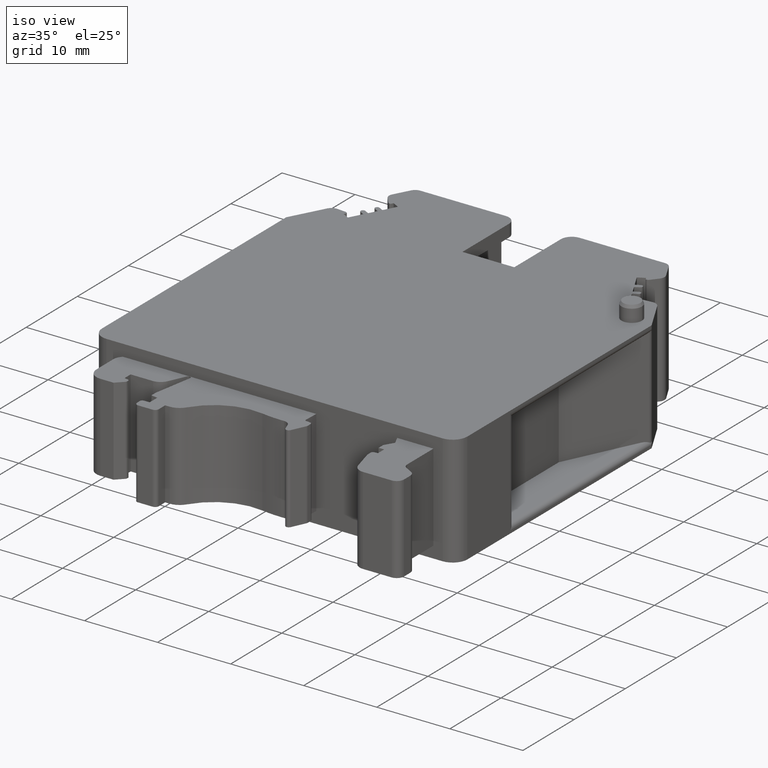
[diagram: clean part render]
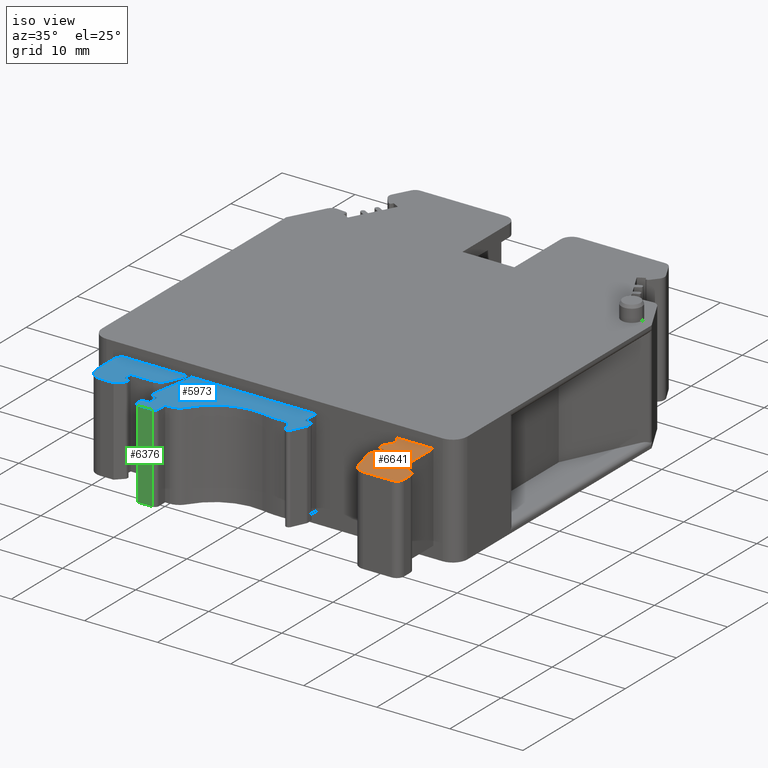
[diagram: same view with three faces highlighted in distinct colors, each labeled with its STEP entity id]
A machine part, iso view with three faces highlighted in distinct colors.
Their STEP definitions:

[orange] entity #6641 — the highlighted planar face has unit normal (0, 0, 1).
#1923=DIRECTION('',(1.E0,0.E0,0.E0));
#1924=VECTOR('',#1923,4.959569202647E0);
#1925=CARTESIAN_POINT('',(4.179043079735E1,6.550315845288E-14,-1.6E0));
#1926=LINE('',#1925,#1924);
#1927=DIRECTION('',(1.619842707403E-13,-1.E0,0.E0));
#1928=VECTOR('',#1927,5.132195842472E0);
#1929=CARTESIAN_POINT('',(4.675E1,6.631732200428E-14,-1.6E0));
#1930=LINE('',#1929,#1928);
#1931=CARTESIAN_POINT('',(4.765E1,-5.132195842466E0,-1.6E0));
#1932=DIRECTION('',(0.E0,0.E0,1.E0));
#1933=DIRECTION('',(-1.E0,-2.067778047553E-11,0.E0));
#1934=AXIS2_PLACEMENT_3D('',#1931,#1932,#1933);
#1936=DIRECTION('',(8.746197071398E-1,-4.848096202457E-1,0.E0));
#1937=VECTOR('',#1936,1.119039211100E0);
#1938=CARTESIAN_POINT('',(4.721367134177E1,-5.919353578881E0,-1.6E0));
#1939=LINE('',#1938,#1937);
#1940=CARTESIAN_POINT('',(4.795000015191E1,-6.899184510810E0,-1.6E0));
#1941=DIRECTION('',(0.E0,0.E0,-1.E0));
#1942=DIRECTION('',(4.848096852540E-1,8.746196711050E-1,0.E0));
#1943=AXIS2_PLACEMENT_3D('',#1940,#1941,#1942);
#1945=CARTESIAN_POINT('',(4.775000097952E1,-7.359998883366E0,-1.6E0));
#1946=DIRECTION('',(0.E0,0.E0,-1.E0));
#1947=DIRECTION('',(4.597724707376E-1,8.880367532664E-1,0.E0));
#1948=AXIS2_PLACEMENT_3D('',#1945,#1946,#1947);
#1950=DIRECTION('',(7.573865511133E-9,-1.E0,0.E0));
#1951=VECTOR('',#1950,1.240269020928E0);
#1952=CARTESIAN_POINT('',(4.874999998359E1,-7.359731023268E0,-1.6E0));
#1953=LINE('',#1952,#1951);
#1954=CARTESIAN_POINT('',(4.775000074708E1,-8.600000747074E0,-1.6E0));
#1955=DIRECTION('',(0.E0,0.E0,-1.E0));
#1956=DIRECTION('',(9.999999999998E-1,6.145249739235E-7,0.E0));
#1957=AXIS2_PLACEMENT_3D('',#1954,#1955,#1956);
#1959=DIRECTION('',(-1.E0,1.488688068237E-13,0.E0));
#1960=VECTOR('',#1959,3.913815498053E0);
#1961=CARTESIAN_POINT('',(4.775000049805E1,-9.600000000001E0,-1.6E0));
#1962=LINE('',#1961,#1960);
#1963=CARTESIAN_POINT('',(4.383618528434E1,-8.099999138882E0,-1.6E0));
#1964=DIRECTION('',(0.E0,0.E0,-1.E0));
#1965=DIRECTION('',(-1.895656729127E-7,-1.E0,0.E0));
#1966=AXIS2_PLACEMENT_3D('',#1963,#1964,#1965);
#1968=DIRECTION('',(-2.588190181939E-1,9.659258334992E-1,0.E0));
#1969=VECTOR('',#1968,3.041878473640E0);
#1970=CARTESIAN_POINT('',(4.238729600001E1,-8.488229000049E0,-1.6E0));
#1971=LINE('',#1970,#1969);
#1972=DIRECTION('',(3.363206218261E-12,1.E0,0.E0));
#1973=VECTOR('',#1972,6.338083569500E-1);
#1974=CARTESIAN_POINT('',(4.16E1,-5.549999999995E0,-1.6E0));
#1975=LINE('',#1974,#1973);
#1976=CARTESIAN_POINT('',(4.190000010430E1,-4.916191501490E0,-1.6E0));
#1977=DIRECTION('',(0.E0,0.E0,-1.E0));
#1978=DIRECTION('',(-9.999999999997E-1,-7.385508449874E-7,0.E0));
#1979=AXIS2_PLACEMENT_3D('',#1976,#1977,#1978);
#1981=DIRECTION('',(9.902681343909E-1,1.391726338400E-1,0.E0));
#1982=VECTOR('',#1981,4.965846955210E-1);
#1983=CARTESIAN_POINT('',(4.1858248E1,-4.619110999999E0,-1.6E0));
#1984=LINE('',#1983,#1982);
#1985=DIRECTION('',(2.368475785867E-14,1.E0,0.E0));
#1986=VECTOR('',#1985,1.2E0);
#1987=CARTESIAN_POINT('',(4.235E1,-4.549999999999E0,-1.6E0));
#1988=LINE('',#1987,#1986);
#1989=DIRECTION('',(-1.E0,0.E0,0.E0));
#1990=VECTOR('',#1989,7.500000000003E-1);
#1991=CARTESIAN_POINT('',(4.235E1,-3.349999999999E0,-1.6E0));
#1992=LINE('',#1991,#1990);
#1993=DIRECTION('',(1.571088937962E-12,1.E0,0.E0));
#1994=VECTOR('',#1993,8.999999999977E-1);
#1995=CARTESIAN_POINT('',(4.16E1,-3.349999999999E0,-1.6E0));
#1996=LINE('',#1995,#1994);
#1997=DIRECTION('',(5.144957554246E-1,8.574929257143E-1,0.E0));
#1998=VECTOR('',#1997,1.457737973714E0);
#1999=CARTESIAN_POINT('',(4.16E1,-2.450000000001E0,-1.6E0));
#2000=LINE('',#1999,#1998);
#2001=DIRECTION('',(-4.226182697187E-1,9.063077833164E-1,0.E0));
#2002=VECTOR('',#2001,1.324053508186E0);
#2003=CARTESIAN_POINT('',(4.235E1,-1.199999999997E0,-1.6E0));
#2004=LINE('',#2003,#2002);
#3810=CARTESIAN_POINT('',(4.675E1,-5.132195842485E0,-1.6E0));
#3811=CARTESIAN_POINT('',(4.721367134175E1,-5.919353578876E0,-1.6E0));
#3812=VERTEX_POINT('',#3810);
#3813=VERTEX_POINT('',#3811);
#3814=CARTESIAN_POINT('',(4.819240508886E1,-6.461874553855E0,-1.6E0));
#3815=VERTEX_POINT('',#3814);
#3816=CARTESIAN_POINT('',(4.820977299991E1,-6.471962999936E0,-1.6E0));
#3817=VERTEX_POINT('',#3816);
#3818=CARTESIAN_POINT('',(4.874999994593E1,-7.359670033565E0,-1.6E0));
#3819=VERTEX_POINT('',#3818);
#3820=CARTESIAN_POINT('',(4.874999999299E1,-8.600000044196E0,-1.6E0));
#3821=VERTEX_POINT('',#3820);
#3822=CARTESIAN_POINT('',(4.775000149415E1,-9.600000000004E0,-1.6E0));
#3823=VERTEX_POINT('',#3822);
#3824=CARTESIAN_POINT('',(4.3836185E1,-9.600000000001E0,-1.6E0));
#3825=VERTEX_POINT('',#3824);
#3826=CARTESIAN_POINT('',(4.238729600002E1,-8.488229000093E0,-1.6E0));
#3827=VERTEX_POINT('',#3826);
#3828=CARTESIAN_POINT('',(4.16E1,-5.549999999995E0,-1.6E0));
#3829=VERTEX_POINT('',#3828);
#3830=CARTESIAN_POINT('',(4.16E1,-4.916191643045E0,-1.6E0));
#3831=VERTEX_POINT('',#3830);
#3832=CARTESIAN_POINT('',(4.1858248E1,-4.619110999999E0,-1.6E0));
#3833=VERTEX_POINT('',#3832);
#3834=CARTESIAN_POINT('',(4.235E1,-4.549999999999E0,-1.6E0));
#3835=VERTEX_POINT('',#3834);
#3836=CARTESIAN_POINT('',(4.235E1,-3.349999999999E0,-1.6E0));
#3837=VERTEX_POINT('',#3836);
#3838=CARTESIAN_POINT('',(4.16E1,-3.349999999999E0,-1.6E0));
#3839=VERTEX_POINT('',#3838);
#3840=CARTESIAN_POINT('',(4.16E1,-2.450000000001E0,-1.6E0));
#3841=VERTEX_POINT('',#3840);
#3842=CARTESIAN_POINT('',(4.235E1,-1.199999999997E0,-1.6E0));
#3843=VERTEX_POINT('',#3842);
#3963=CARTESIAN_POINT('',(4.179043079735E1,6.550315845288E-14,-1.6E0));
#3965=VERTEX_POINT('',#3963);
#3966=CARTESIAN_POINT('',(4.675E1,6.631732200428E-14,-1.6E0));
#3968=VERTEX_POINT('',#3966);
#6597=CARTESIAN_POINT('',(4.447126627740E1,-2.099999999997E0,-1.6E0));
#6598=DIRECTION('',(0.E0,0.E0,1.E0));
#6599=DIRECTION('',(-1.E0,0.E0,0.E0));
#6600=AXIS2_PLACEMENT_3D('',#6597,#6598,#6599);
#6601=PLANE('',#6600);
#6602=ORIENTED_EDGE('',*,*,#5862,.T.);
#6604=ORIENTED_EDGE('',*,*,#6603,.T.);
#6606=ORIENTED_EDGE('',*,*,#6605,.T.);
#6608=ORIENTED_EDGE('',*,*,#6607,.T.);
#6610=ORIENTED_EDGE('',*,*,#6609,.T.);
#6612=ORIENTED_EDGE('',*,*,#6611,.T.);
#6614=ORIENTED_EDGE('',*,*,#6613,.T.);
#6616=ORIENTED_EDGE('',*,*,#6615,.T.);
#6618=ORIENTED_EDGE('',*,*,#6617,.T.);
#6620=ORIENTED_EDGE('',*,*,#6619,.T.);
#6622=ORIENTED_EDGE('',*,*,#6621,.T.);
#6624=ORIENTED_EDGE('',*,*,#6623,.T.);
#6626=ORIENTED_EDGE('',*,*,#6625,.T.);
#6628=ORIENTED_EDGE('',*,*,#6627,.T.);
#6630=ORIENTED_EDGE('',*,*,#6629,.T.);
#6632=ORIENTED_EDGE('',*,*,#6631,.T.);
#6634=ORIENTED_EDGE('',*,*,#6633,.T.);
#6636=ORIENTED_EDGE('',*,*,#6635,.T.);
#6638=ORIENTED_EDGE('',*,*,#6637,.T.);
#6639=EDGE_LOOP('',(#6602,#6604,#6606,#6608,#6610,#6612,#6614,#6616,#6618,#6620,
#6622,#6624,#6626,#6628,#6630,#6632,#6634,#6636,#6638));
#6640=FACE_OUTER_BOUND('',#6639,.F.);
#6641=ADVANCED_FACE('',(#6640),#6601,.T.);
#1935=CIRCLE('',#1934,9.E-1);
#1944=CIRCLE('',#1943,5.000001519100E-1);
#1949=CIRCLE('',#1948,9.999990204800E-1);
#1958=CIRCLE('',#1957,9.999992529300E-1);
#1967=CIRCLE('',#1966,1.500000861120E0);
#1980=CIRCLE('',#1979,3.000001043E-1);
#5862=EDGE_CURVE('',#3965,#3968,#1926,.T.);
#6603=EDGE_CURVE('',#3968,#3812,#1930,.T.);
#6605=EDGE_CURVE('',#3812,#3813,#1935,.T.);
#6607=EDGE_CURVE('',#3813,#3815,#1939,.T.);
#6609=EDGE_CURVE('',#3815,#3817,#1944,.T.);
#6611=EDGE_CURVE('',#3817,#3819,#1949,.T.);
#6613=EDGE_CURVE('',#3819,#3821,#1953,.T.);
#6615=EDGE_CURVE('',#3821,#3823,#1958,.T.);
#6617=EDGE_CURVE('',#3823,#3825,#1962,.T.);
#6619=EDGE_CURVE('',#3825,#3827,#1967,.T.);
#6621=EDGE_CURVE('',#3827,#3829,#1971,.T.);
#6623=EDGE_CURVE('',#3829,#3831,#1975,.T.);
#6625=EDGE_CURVE('',#3831,#3833,#1980,.T.);
#6627=EDGE_CURVE('',#3833,#3835,#1984,.T.);
#6629=EDGE_CURVE('',#3835,#3837,#1988,.T.);
#6631=EDGE_CURVE('',#3837,#3839,#1992,.T.);
#6633=EDGE_CURVE('',#3839,#3841,#1996,.T.);
#6635=EDGE_CURVE('',#3841,#3843,#2000,.T.);
#6637=EDGE_CURVE('',#3843,#3965,#2004,.T.);

[blue] entity #5973 — the highlighted planar face has unit normal (0, 0, 1).
#1385=DIRECTION('',(1.E0,0.E0,0.E0));
#1386=VECTOR('',#1385,2.645532482098E1);
#1387=CARTESIAN_POINT('',(4.260659416361E0,6.631732200428E-14,-1.6E0));
#1388=LINE('',#1387,#1386);
#1389=DIRECTION('',(-3.489970576851E-2,-9.993908197183E-1,0.E0));
#1390=VECTOR('',#1389,1.890681766179E0);
#1391=CARTESIAN_POINT('',(3.071598423734E1,6.635432943843E-14,-1.6E0));
#1392=LINE('',#1391,#1390);
#1393=CARTESIAN_POINT('',(3.094981710352E1,-1.900000134533E0,-1.6E0));
#1394=DIRECTION('',(0.E0,0.E0,1.E0));
#1395=DIRECTION('',(-9.993907932912E-1,3.490046252937E-2,0.E0));
#1396=AXIS2_PLACEMENT_3D('',#1393,#1394,#1395);
#1398=DIRECTION('',(1.E0,6.876640089118E-12,0.E0));
#1399=VECTOR('',#1398,1.773350000065E-1);
#1400=CARTESIAN_POINT('',(3.0949817E1,-2.200000000001E0,-1.6E0));
#1401=LINE('',#1400,#1399);
#1402=DIRECTION('',(9.876884786627E-1,-1.564335933135E-1,0.E0));
#1403=VECTOR('',#1402,3.512544769791E-1);
#1404=CARTESIAN_POINT('',(3.1127152E1,-2.2E0,-1.6E0));
#1405=LINE('',#1404,#1403);
#1406=CARTESIAN_POINT('',(3.142715124378E1,-2.551255201820E0,-1.6E0));
#1407=DIRECTION('',(0.E0,0.E0,-1.E0));
#1408=DIRECTION('',(1.564354596651E-1,9.876881830615E-1,0.E0));
#1409=AXIS2_PLACEMENT_3D('',#1406,#1407,#1408);
#1411=DIRECTION('',(1.169249998310E-11,-1.E0,0.E0));
#1412=VECTOR('',#1411,5.487450000588E-1);
#1413=CARTESIAN_POINT('',(3.1727152E1,-2.551255000007E0,-1.6E0));
#1414=LINE('',#1413,#1412);
#1415=CARTESIAN_POINT('',(3.112715307426E1,-3.100000984032E0,-1.6E0));
#1416=DIRECTION('',(0.E0,0.E0,-1.E0));
#1417=DIRECTION('',(9.999999999987E-1,1.639732406527E-6,0.E0));
#1418=AXIS2_PLACEMENT_3D('',#1415,#1416,#1417);
#1420=DIRECTION('',(-4.226185233592E-1,-9.063076650419E-1,0.E0));
#1421=VECTOR('',#1420,2.003156400427E0);
#1422=CARTESIAN_POINT('',(3.167093700001E1,-3.353571000007E0,-1.6E0));
#1423=LINE('',#1422,#1421);
#1424=CARTESIAN_POINT('',(3.046184290606E1,-5.000000069321E0,-1.6E0));
#1425=DIRECTION('',(0.E0,0.E0,-1.E0));
#1426=DIRECTION('',(9.063081358756E-1,-4.226175136524E-1,0.E0));
#1427=AXIS2_PLACEMENT_3D('',#1424,#1425,#1426);
#1429=DIRECTION('',(-3.420197221216E-1,9.396927740916E-1,0.E0));
#1430=VECTOR('',#1429,9.399722439055E-1);
#1431=CARTESIAN_POINT('',(3.008596604566E1,-5.136808125456E0,-1.6E0));
#1432=LINE('',#1431,#1430);
#1433=CARTESIAN_POINT('',(2.882478447132E1,-4.595542793953E0,-1.6E0));
#1434=DIRECTION('',(0.E0,0.E0,1.E0));
#1435=DIRECTION('',(9.396927223079E-1,3.420198643963E-1,0.E0));
#1436=AXIS2_PLACEMENT_3D('',#1433,#1434,#1435);
#1438=DIRECTION('',(-1.E0,-1.838465891041E-12,0.E0));
#1439=VECTOR('',#1438,5.055730001549E-1);
#1440=CARTESIAN_POINT('',(2.882478399999E1,-3.595543000001E0,-1.6E0));
#1441=LINE('',#1440,#1439);
#1442=CARTESIAN_POINT('',(2.831919990785E1,1.140437407567E1,-1.6E0));
#1443=DIRECTION('',(0.E0,0.E0,-1.E0));
#1444=DIRECTION('',(7.394640417430E-7,-9.999999999997E-1,0.E0));
#1445=AXIS2_PLACEMENT_3D('',#1442,#1443,#1444);
#1447=CARTESIAN_POINT('',(2.437516390494E1,-1.094676811317E1,-1.6E0));
#1448=DIRECTION('',(0.E0,0.E0,1.E0));
#1449=DIRECTION('',(1.737727354762E-1,9.847857819877E-1,0.E0));
#1450=AXIS2_PLACEMENT_3D('',#1447,#1448,#1449);
#1452=CARTESIAN_POINT('',(1.612617924251E1,-5.850001638044E0,-1.6E0));
#1453=DIRECTION('',(0.E0,0.E0,-1.E0));
#1454=DIRECTION('',(8.507150755654E-1,-5.256271113687E-1,0.E0));
#1455=AXIS2_PLACEMENT_3D('',#1452,#1453,#1454);
#1457=DIRECTION('',(-1.E0,-2.918493342988E-12,0.E0));
#1458=VECTOR('',#1457,5.961779999852E-1);
#1459=CARTESIAN_POINT('',(1.612617799999E1,-7.849999999997E0,-1.6E0));
#1460=LINE('',#1459,#1458);
#1461=DIRECTION('',(-3.836930773098E-14,-1.E0,0.E0));
#1462=VECTOR('',#1461,1.250000000002E0);
#1463=CARTESIAN_POINT('',(1.553E1,-7.849999999998E0,-1.6E0));
#1464=LINE('',#1463,#1462);
#1465=CARTESIAN_POINT('',(1.503000037354E1,-9.100000373537E0,-1.6E0));
#1466=DIRECTION('',(0.E0,0.E0,-1.E0));
#1467=DIRECTION('',(9.999999999997E-1,7.470745909830E-7,0.E0));
#1468=AXIS2_PLACEMENT_3D('',#1465,#1466,#1467);
#1470=DIRECTION('',(-1.E0,0.E0,0.E0));
#1471=VECTOR('',#1470,1.979999999996E0);
#1472=CARTESIAN_POINT('',(1.503E1,-9.599999999998E0,-1.6E0));
#1473=LINE('',#1472,#1471);
#1474=CARTESIAN_POINT('',(1.304999962646E1,-9.100000373537E0,-1.6E0));
#1475=DIRECTION('',(0.E0,0.E0,-1.E0));
#1476=DIRECTION('',(7.470925108842E-7,-9.999999999997E-1,0.E0));
#1477=AXIS2_PLACEMENT_3D('',#1474,#1475,#1476);
#1479=DIRECTION('',(0.E0,1.E0,0.E0));
#1480=VECTOR('',#1479,6.000005236489E-1);
#1481=CARTESIAN_POINT('',(1.255E1,-9.100000363168E0,-1.6E0));
#1482=LINE('',#1481,#1480);
#1483=CARTESIAN_POINT('',(1.284999977588E1,-8.499999775876E0,-1.6E0));
#1484=DIRECTION('',(0.E0,0.E0,-1.E0));
#1485=DIRECTION('',(-9.999999999999E-1,-3.320471831941E-7,0.E0));
#1486=AXIS2_PLACEMENT_3D('',#1483,#1484,#1485);
#1488=DIRECTION('',(1.E0,-1.181277298195E-12,0.E0));
#1489=VECTOR('',#1488,8.000000000039E-1);
#1490=CARTESIAN_POINT('',(1.285E1,-8.199999999998E0,-1.6E0));
#1491=LINE('',#1490,#1489);
#1492=DIRECTION('',(0.E0,1.E0,0.E0));
#1493=VECTOR('',#1492,1.5E0);
#1494=CARTESIAN_POINT('',(1.365E1,-8.199999999999E0,-1.6E0));
#1495=LINE('',#1494,#1493);
#1496=DIRECTION('',(-9.902680310179E-1,1.391733693774E-1,0.E0));
#1497=VECTOR('',#1496,9.088448498886E-1);
#1498=CARTESIAN_POINT('',(1.365E1,-6.699999999999E0,-1.6E0));
#1499=LINE('',#1498,#1497);
#1500=DIRECTION('',(-7.198866200591E-13,1.E0,0.E0));
#1501=VECTOR('',#1500,8.73513E-1);
#1502=CARTESIAN_POINT('',(1.275E1,-6.573512999999E0,-1.6E0));
#1503=LINE('',#1502,#1501);
#1504=DIRECTION('',(1.709167985216E-1,9.852854652247E-1,0.E0));
#1505=VECTOR('',#1504,5.410574080333E0);
#1506=CARTESIAN_POINT('',(1.275E1,-5.699999999999E0,-1.6E0));
#1507=LINE('',#1506,#1505);
#1508=CARTESIAN_POINT('',(1.337917271350E1,-3.177650314800E-1,-1.6E0));
#1509=DIRECTION('',(0.E0,0.E0,1.E0));
#1510=DIRECTION('',(9.852854706130E-1,-1.709167674597E-1,0.E0));
#1511=AXIS2_PLACEMENT_3D('',#1508,#1509,#1510);
#1513=DIRECTION('',(-4.116168216028E-1,-9.113570058839E-1,0.E0));
#1514=VECTOR('',#1513,2.494242086658E0);
#1515=CARTESIAN_POINT('',(1.310576600001E1,-1.942799999775E-1,-1.6E0));
#1516=LINE('',#1515,#1514);
#1517=CARTESIAN_POINT('',(1.071205904349E1,-1.850001018068E0,-1.6E0));
#1518=DIRECTION('',(0.E0,0.E0,-1.E0));
#1519=DIRECTION('',(9.113572562158E-1,-4.116162673448E-1,0.E0));
#1520=AXIS2_PLACEMENT_3D('',#1517,#1518,#1519);
#1522=DIRECTION('',(-1.E0,6.917914458122E-14,0.E0));
#1523=VECTOR('',#1522,3.062058000006E0);
#1524=CARTESIAN_POINT('',(1.071205800001E1,-3.349999999999E0,-1.6E0));
#1525=LINE('',#1524,#1523);
#1526=DIRECTION('',(3.552713678802E-14,-1.E0,0.E0));
#1527=VECTOR('',#1526,1.2E0);
#1528=CARTESIAN_POINT('',(7.65E0,-3.349999999999E0,-1.6E0));
#1529=LINE('',#1528,#1527);
#1530=DIRECTION('',(9.902681343909E-1,-1.391726338401E-1,0.E0));
#1531=VECTOR('',#1530,4.965846955184E-1);
#1532=CARTESIAN_POINT('',(7.65E0,-4.549999999999E0,-1.6E0));
#1533=LINE('',#1532,#1531);
#1534=CARTESIAN_POINT('',(8.099999895700E0,-4.916191501490E0,-1.6E0));
#1535=DIRECTION('',(0.E0,0.E0,-1.E0));
#1536=DIRECTION('',(1.391736326058E-1,9.902679940235E-1,0.E0));
#1537=AXIS2_PLACEMENT_3D('',#1534,#1535,#1536);
#1539=DIRECTION('',(-2.124060082700E-13,-1.E0,0.E0));
#1540=VECTOR('',#1539,1.338084061835E-1);
#1541=CARTESIAN_POINT('',(8.399999999999E0,-4.916191593810E0,-1.6E0));
#1542=LINE('',#1541,#1540);
#1543=CARTESIAN_POINT('',(8.049999666820E0,-5.049999115160E0,-1.6E0));
#1544=DIRECTION('',(0.E0,0.E0,-1.E0));
#1545=DIRECTION('',(9.999999999968E-1,-2.528093507598E-6,0.E0));
#1546=AXIS2_PLACEMENT_3D('',#1543,#1544,#1545);
#1548=DIRECTION('',(-7.071064100066E-1,-7.071071523663E-1,0.E0));
#1549=VECTOR('',#1548,1.347055930907E0);
#1550=CARTESIAN_POINT('',(8.297486883381E0,-5.297487116617E0,-1.6E0));
#1551=LINE('',#1550,#1549);
#1552=DIRECTION('',(-1.E0,5.146063630351E-14,0.E0));
#1553=VECTOR('',#1552,1.794974999998E0);
#1554=CARTESIAN_POINT('',(7.344975E0,-6.249999999999E0,-1.6E0));
#1555=LINE('',#1554,#1553);
#1556=CARTESIAN_POINT('',(5.549998655260E0,-4.450001344734E0,-1.6E0));
#1557=DIRECTION('',(0.E0,0.E0,-1.E0));
#1558=DIRECTION('',(7.470806349393E-7,-9.999999999997E-1,0.E0));
#1559=AXIS2_PLACEMENT_3D('',#1556,#1557,#1558);
#1561=DIRECTION('',(1.005124603551E-13,1.E0,0.E0));
#1562=VECTOR('',#1561,3.322524238561E0);
#1563=CARTESIAN_POINT('',(3.749999999997E0,-4.450001306435E0,-1.6E0));
#1564=LINE('',#1563,#1562);
#1565=CARTESIAN_POINT('',(5.249999475510E0,-1.127477127886E0,-1.6E0));
#1566=DIRECTION('',(0.E0,0.E0,-1.E0));
#1567=DIRECTION('',(-1.E0,6.633209650906E-8,0.E0));
#1568=AXIS2_PLACEMENT_3D('',#1565,#1566,#1567);
#3652=CARTESIAN_POINT('',(3.0949817E1,-2.200000000001E0,-1.6E0));
#3653=CARTESIAN_POINT('',(3.1127152E1,-2.2E0,-1.6E0));
#3654=VERTEX_POINT('',#3652);
#3655=VERTEX_POINT('',#3653);
#3656=CARTESIAN_POINT('',(3.147408199999E1,-2.254948000001E0,-1.6E0));
#3657=VERTEX_POINT('',#3656);
#3658=CARTESIAN_POINT('',(3.172715199999E1,-2.551255000026E0,-1.6E0));
#3659=VERTEX_POINT('',#3658);
#3660=CARTESIAN_POINT('',(3.1727152E1,-3.100000000066E0,-1.6E0));
#3661=VERTEX_POINT('',#3660);
#3662=CARTESIAN_POINT('',(3.1670937E1,-3.353571000015E0,-1.6E0));
#3663=VERTEX_POINT('',#3662);
#3664=CARTESIAN_POINT('',(3.0824366E1,-5.169046999991E0,-1.6E0));
#3665=VERTEX_POINT('',#3664);
#3666=CARTESIAN_POINT('',(3.008596613699E1,-5.136808376375E0,-1.6E0));
#3667=VERTEX_POINT('',#3666);
#3668=CARTESIAN_POINT('',(2.9764477E1,-4.253523000012E0,-1.6E0));
#3669=VERTEX_POINT('',#3668);
#3670=CARTESIAN_POINT('',(2.882478399998E1,-3.595543000003E0,-1.6E0));
#3671=VERTEX_POINT('',#3670);
#3672=CARTESIAN_POINT('',(2.831921099984E1,-3.595543000002E0,-1.6E0));
#3673=VERTEX_POINT('',#3672);
#3674=CARTESIAN_POINT('',(2.571261199991E1,-3.367328999990E0,-1.6E0));
#3675=VERTEX_POINT('',#3674);
#3676=CARTESIAN_POINT('',(1.782760800014E1,-6.901254999783E0,-1.6E0));
#3677=VERTEX_POINT('',#3676);
#3678=CARTESIAN_POINT('',(1.612617799996E1,-7.849999999994E0,-1.6E0));
#3679=VERTEX_POINT('',#3678);
#3680=CARTESIAN_POINT('',(1.553E1,-7.849999999998E0,-1.6E0));
#3681=VERTEX_POINT('',#3680);
#3682=CARTESIAN_POINT('',(1.553E1,-9.1E0,-1.6E0));
#3683=VERTEX_POINT('',#3682);
#3684=CARTESIAN_POINT('',(1.502999999999E1,-9.599999999997E0,-1.6E0));
#3685=VERTEX_POINT('',#3684);
#3686=CARTESIAN_POINT('',(1.305E1,-9.599999999998E0,-1.6E0));
#3687=VERTEX_POINT('',#3686);
#3688=CARTESIAN_POINT('',(1.255E1,-9.100000373553E0,-1.6E0));
#3689=VERTEX_POINT('',#3688);
#3690=CARTESIAN_POINT('',(1.255E1,-8.499999839519E0,-1.6E0));
#3691=VERTEX_POINT('',#3690);
#3692=CARTESIAN_POINT('',(1.284999999999E1,-8.199999999996E0,-1.6E0));
#3693=VERTEX_POINT('',#3692);
#3694=CARTESIAN_POINT('',(1.365E1,-8.199999999999E0,-1.6E0));
#3695=VERTEX_POINT('',#3694);
#3696=CARTESIAN_POINT('',(1.365E1,-6.699999999999E0,-1.6E0));
#3697=VERTEX_POINT('',#3696);
#3698=CARTESIAN_POINT('',(1.275E1,-6.573512999999E0,-1.6E0));
#3699=VERTEX_POINT('',#3698);
#3700=CARTESIAN_POINT('',(1.275E1,-5.699999999999E0,-1.6E0));
#3701=VERTEX_POINT('',#3700);
#3702=CARTESIAN_POINT('',(1.367475799997E1,-3.690400001252E-1,-1.6E0));
#3703=VERTEX_POINT('',#3702);
#3704=CARTESIAN_POINT('',(1.310576600001E1,-1.942799999775E-1,-1.6E0));
#3705=CARTESIAN_POINT('',(1.207909399999E1,-2.467425000024E0,-1.6E0));
#3706=VERTEX_POINT('',#3704);
#3707=VERTEX_POINT('',#3705);
#3708=CARTESIAN_POINT('',(1.071205800001E1,-3.35E0,-1.6E0));
#3709=VERTEX_POINT('',#3708);
#3710=CARTESIAN_POINT('',(7.65E0,-3.349999999999E0,-1.6E0));
#3711=VERTEX_POINT('',#3710);
#3712=CARTESIAN_POINT('',(7.65E0,-4.549999999999E0,-1.6E0));
#3713=VERTEX_POINT('',#3712);
#3714=CARTESIAN_POINT('',(8.141751999998E0,-4.619110999999E0,-1.6E0));
#3715=VERTEX_POINT('',#3714);
#3716=CARTESIAN_POINT('',(8.399999999999E0,-4.916191501495E0,-1.6E0));
#3717=VERTEX_POINT('',#3716);
#3718=CARTESIAN_POINT('',(8.399999999999E0,-5.049999999994E0,-1.6E0));
#3719=VERTEX_POINT('',#3718);
#3720=CARTESIAN_POINT('',(8.297486650150E0,-5.297487349847E0,-1.6E0));
#3721=VERTEX_POINT('',#3720);
#3722=CARTESIAN_POINT('',(7.344975E0,-6.249999999999E0,-1.6E0));
#3723=VERTEX_POINT('',#3722);
#3724=CARTESIAN_POINT('',(5.550000000001E0,-6.249999999999E0,-1.6E0));
#3725=VERTEX_POINT('',#3724);
#3726=CARTESIAN_POINT('',(3.749999999995E0,-4.450001342611E0,-1.6E0));
#3727=VERTEX_POINT('',#3726);
#3728=CARTESIAN_POINT('',(3.749999999998E0,-1.127477067874E0,-1.6E0));
#3729=VERTEX_POINT('',#3728);
#3730=CARTESIAN_POINT('',(3.065E1,-1.889530000128E0,-1.6E0));
#3732=VERTEX_POINT('',#3730);
#3954=CARTESIAN_POINT('',(3.071598423734E1,6.635432943843E-14,-1.6E0));
#3956=VERTEX_POINT('',#3954);
#3958=CARTESIAN_POINT('',(4.260659416361E0,6.631732200428E-14,-1.6E0));
#3960=VERTEX_POINT('',#3958);
#5883=CARTESIAN_POINT('',(1.7738576E1,-2.099999999996E0,-1.6E0));
#5884=DIRECTION('',(0.E0,0.E0,1.E0));
#5885=DIRECTION('',(-1.E0,0.E0,0.E0));
#5886=AXIS2_PLACEMENT_3D('',#5883,#5884,#5885);
#5887=PLANE('',#5886);
#5888=ORIENTED_EDGE('',*,*,#5872,.T.);
#5890=ORIENTED_EDGE('',*,*,#5889,.T.);
#5892=ORIENTED_EDGE('',*,*,#5891,.T.);
#5894=ORIENTED_EDGE('',*,*,#5893,.T.);
#5896=ORIENTED_EDGE('',*,*,#5895,.T.);
#5898=ORIENTED_EDGE('',*,*,#5897,.T.);
#5900=ORIENTED_EDGE('',*,*,#5899,.T.);
#5902=ORIENTED_EDGE('',*,*,#5901,.T.);
#5904=ORIENTED_EDGE('',*,*,#5903,.T.);
#5906=ORIENTED_EDGE('',*,*,#5905,.T.);
#5908=ORIENTED_EDGE('',*,*,#5907,.T.);
#5910=ORIENTED_EDGE('',*,*,#5909,.T.);
#5912=ORIENTED_EDGE('',*,*,#5911,.T.);
#5914=ORIENTED_EDGE('',*,*,#5913,.T.);
#5916=ORIENTED_EDGE('',*,*,#5915,.T.);
#5918=ORIENTED_EDGE('',*,*,#5917,.T.);
#5920=ORIENTED_EDGE('',*,*,#5919,.T.);
#5922=ORIENTED_EDGE('',*,*,#5921,.T.);
#5924=ORIENTED_EDGE('',*,*,#5923,.T.);
#5926=ORIENTED_EDGE('',*,*,#5925,.T.);
#5928=ORIENTED_EDGE('',*,*,#5927,.T.);
#5930=ORIENTED_EDGE('',*,*,#5929,.T.);
#5932=ORIENTED_EDGE('',*,*,#5931,.T.);
#5934=ORIENTED_EDGE('',*,*,#5933,.T.);
#5936=ORIENTED_EDGE('',*,*,#5935,.T.);
#5938=ORIENTED_EDGE('',*,*,#5937,.T.);
#5940=ORIENTED_EDGE('',*,*,#5939,.T.);
#5942=ORIENTED_EDGE('',*,*,#5941,.T.);
#5944=ORIENTED_EDGE('',*,*,#5943,.T.);
#5946=ORIENTED_EDGE('',*,*,#5945,.T.);
#5948=ORIENTED_EDGE('',*,*,#5947,.T.);
#5950=ORIENTED_EDGE('',*,*,#5949,.T.);
#5952=ORIENTED_EDGE('',*,*,#5951,.T.);
#5954=ORIENTED_EDGE('',*,*,#5953,.T.);
#5956=ORIENTED_EDGE('',*,*,#5955,.T.);
#5958=ORIENTED_EDGE('',*,*,#5957,.T.);
#5960=ORIENTED_EDGE('',*,*,#5959,.T.);
#5962=ORIENTED_EDGE('',*,*,#5961,.T.);
#5964=ORIENTED_EDGE('',*,*,#5963,.T.);
#5966=ORIENTED_EDGE('',*,*,#5965,.T.);
#5968=ORIENTED_EDGE('',*,*,#5967,.T.);
#5970=ORIENTED_EDGE('',*,*,#5969,.T.);
#5971=EDGE_LOOP('',(#5888,#5890,#5892,#5894,#5896,#5898,#5900,#5902,#5904,#5906,
#5908,#5910,#5912,#5914,#5916,#5918,#5920,#5922,#5924,#5926,#5928,#5930,#5932,
#5934,#5936,#5938,#5940,#5942,#5944,#5946,#5948,#5950,#5952,#5954,#5956,#5958,
#5960,#5962,#5964,#5966,#5968,#5970));
#5972=FACE_OUTER_BOUND('',#5971,.F.);
#5973=ADVANCED_FACE('',(#5972),#5887,.T.);
#1397=CIRCLE('',#1396,2.999998654700E-1);
#1410=CIRCLE('',#1409,3.000007562100E-1);
#1419=CIRCLE('',#1418,5.999989257500E-1);
#1428=CIRCLE('',#1427,3.999998230100E-1);
#1437=CIRCLE('',#1436,9.999997939500E-1);
#1446=CIRCLE('',#1445,1.499991707568E1);
#1451=CIRCLE('',#1450,7.696535888120E0);
#1456=CIRCLE('',#1455,1.999998361950E0);
#1469=CIRCLE('',#1468,4.999996264600E-1);
#1478=CIRCLE('',#1477,4.999996264600E-1);
#1487=CIRCLE('',#1486,2.999997758800E-1);
#1512=CIRCLE('',#1511,2.999996399800E-1);
#1521=CIRCLE('',#1520,1.499998981932E0);
#1538=CIRCLE('',#1537,3.000001042990E-1);
#1547=CIRCLE('',#1546,3.500003331800E-1);
#1560=CIRCLE('',#1559,1.799998655265E0);
#1569=CIRCLE('',#1568,1.499999475514E0);
#5872=EDGE_CURVE('',#3960,#3956,#1388,.T.);
#5889=EDGE_CURVE('',#3956,#3732,#1392,.T.);
#5891=EDGE_CURVE('',#3732,#3654,#1397,.T.);
#5893=EDGE_CURVE('',#3654,#3655,#1401,.T.);
#5895=EDGE_CURVE('',#3655,#3657,#1405,.T.);
#5897=EDGE_CURVE('',#3657,#3659,#1410,.T.);
#5899=EDGE_CURVE('',#3659,#3661,#1414,.T.);
#5901=EDGE_CURVE('',#3661,#3663,#1419,.T.);
#5903=EDGE_CURVE('',#3663,#3665,#1423,.T.);
#5905=EDGE_CURVE('',#3665,#3667,#1428,.T.);
#5907=EDGE_CURVE('',#3667,#3669,#1432,.T.);
#5909=EDGE_CURVE('',#3669,#3671,#1437,.T.);
#5911=EDGE_CURVE('',#3671,#3673,#1441,.T.);
#5913=EDGE_CURVE('',#3673,#3675,#1446,.T.);
#5915=EDGE_CURVE('',#3675,#3677,#1451,.T.);
#5917=EDGE_CURVE('',#3677,#3679,#1456,.T.);
#5919=EDGE_CURVE('',#3679,#3681,#1460,.T.);
#5921=EDGE_CURVE('',#3681,#3683,#1464,.T.);
#5923=EDGE_CURVE('',#3683,#3685,#1469,.T.);
#5925=EDGE_CURVE('',#3685,#3687,#1473,.T.);
#5927=EDGE_CURVE('',#3687,#3689,#1478,.T.);
#5929=EDGE_CURVE('',#3689,#3691,#1482,.T.);
#5931=EDGE_CURVE('',#3691,#3693,#1487,.T.);
#5933=EDGE_CURVE('',#3693,#3695,#1491,.T.);
#5935=EDGE_CURVE('',#3695,#3697,#1495,.T.);
#5937=EDGE_CURVE('',#3697,#3699,#1499,.T.);
#5939=EDGE_CURVE('',#3699,#3701,#1503,.T.);
#5941=EDGE_CURVE('',#3701,#3703,#1507,.T.);
#5943=EDGE_CURVE('',#3703,#3706,#1512,.T.);
#5945=EDGE_CURVE('',#3706,#3707,#1516,.T.);
#5947=EDGE_CURVE('',#3707,#3709,#1521,.T.);
#5949=EDGE_CURVE('',#3709,#3711,#1525,.T.);
#5951=EDGE_CURVE('',#3711,#3713,#1529,.T.);
#5953=EDGE_CURVE('',#3713,#3715,#1533,.T.);
#5955=EDGE_CURVE('',#3715,#3717,#1538,.T.);
#5957=EDGE_CURVE('',#3717,#3719,#1542,.T.);
#5959=EDGE_CURVE('',#3719,#3721,#1547,.T.);
#5961=EDGE_CURVE('',#3721,#3723,#1551,.T.);
#5963=EDGE_CURVE('',#3723,#3725,#1555,.T.);
#5965=EDGE_CURVE('',#3725,#3727,#1560,.T.);
#5967=EDGE_CURVE('',#3727,#3729,#1564,.T.);
#5969=EDGE_CURVE('',#3729,#3960,#1569,.T.);

[green] entity #6376 — the highlighted planar face has unit normal (0, 1, 0).
#1470=DIRECTION('',(-1.E0,0.E0,0.E0));
#1471=VECTOR('',#1470,1.979999999996E0);
#1472=CARTESIAN_POINT('',(1.503E1,-9.599999999998E0,-1.6E0));
#1473=LINE('',#1472,#1471);
#1674=DIRECTION('',(1.E0,0.E0,0.E0));
#1675=VECTOR('',#1674,1.979999999996E0);
#1676=CARTESIAN_POINT('',(1.305E1,-9.599999999998E0,-1.36E1));
#1677=LINE('',#1676,#1675);
#1843=DIRECTION('',(0.E0,0.E0,-1.E0));
#1844=VECTOR('',#1843,1.2E1);
#1845=CARTESIAN_POINT('',(1.305E1,-9.599999999998E0,-1.6E0));
#1846=LINE('',#1845,#1844);
#1855=DIRECTION('',(0.E0,0.E0,1.E0));
#1856=VECTOR('',#1855,1.2E1);
#1857=CARTESIAN_POINT('',(1.503E1,-9.599999999998E0,-1.36E1));
#1858=LINE('',#1857,#1856);
#3616=CARTESIAN_POINT('',(1.305000000001E1,-9.599999999997E0,-1.36E1));
#3617=VERTEX_POINT('',#3616);
#3618=CARTESIAN_POINT('',(1.503E1,-9.599999999998E0,-1.36E1));
#3619=VERTEX_POINT('',#3618);
#3684=CARTESIAN_POINT('',(1.502999999999E1,-9.599999999997E0,-1.6E0));
#3685=VERTEX_POINT('',#3684);
#3686=CARTESIAN_POINT('',(1.305E1,-9.599999999998E0,-1.6E0));
#3687=VERTEX_POINT('',#3686);
#6364=CARTESIAN_POINT('',(1.404E1,-9.599999999999E0,-7.6E0));
#6365=DIRECTION('',(0.E0,1.E0,0.E0));
#6366=DIRECTION('',(-1.E0,0.E0,0.E0));
#6367=AXIS2_PLACEMENT_3D('',#6364,#6365,#6366);
#6368=PLANE('',#6367);
#6369=ORIENTED_EDGE('',*,*,#5925,.F.);
#6371=ORIENTED_EDGE('',*,*,#6370,.F.);
#6372=ORIENTED_EDGE('',*,*,#6038,.F.);
#6373=ORIENTED_EDGE('',*,*,#6357,.F.);
#6374=EDGE_LOOP('',(#6369,#6371,#6372,#6373));
#6375=FACE_OUTER_BOUND('',#6374,.F.);
#6376=ADVANCED_FACE('',(#6375),#6368,.F.);
#5925=EDGE_CURVE('',#3685,#3687,#1473,.T.);
#6038=EDGE_CURVE('',#3617,#3619,#1677,.T.);
#6357=EDGE_CURVE('',#3687,#3617,#1846,.T.);
#6370=EDGE_CURVE('',#3619,#3685,#1858,.T.);